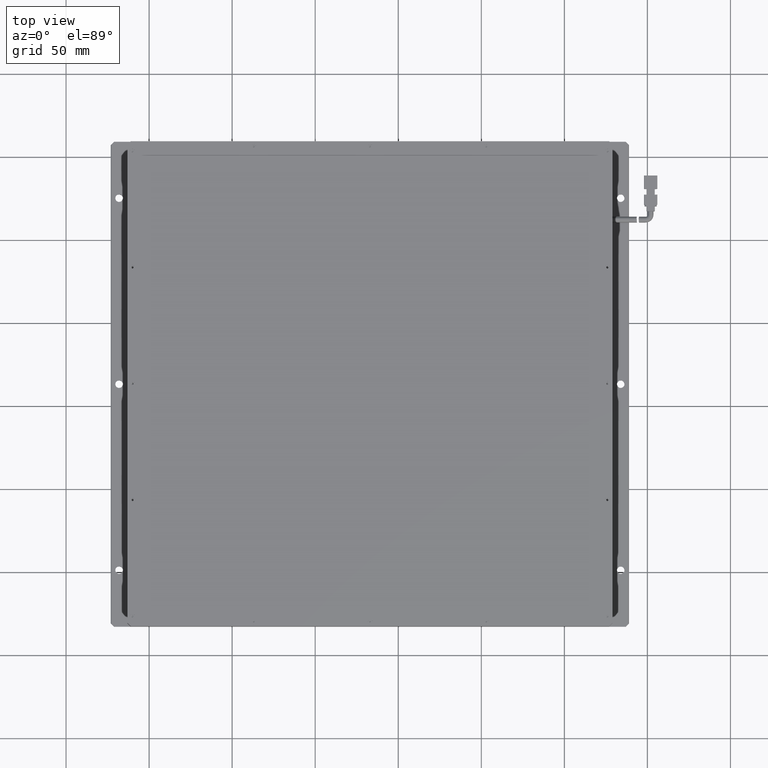
[diagram: clean part render]
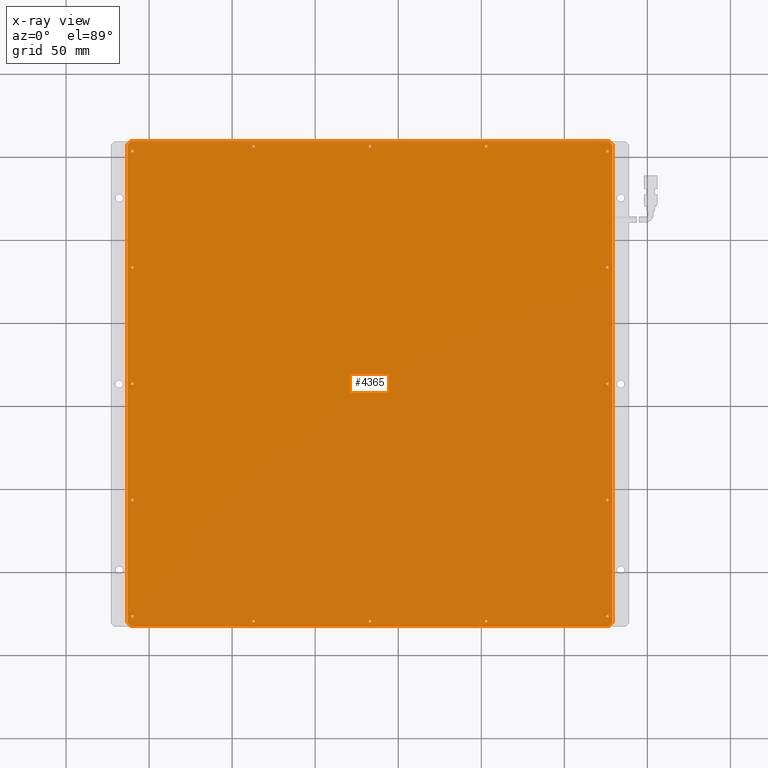
[diagram: x-ray — body ghosted, one internal face saturated and labeled with its STEP entity id]
A machine part, top view, then the same camera in x-ray: the body is ghosted and one INTERNAL B-rep face — a face not visible from any outside direction — is saturated and labeled: STEP entity #4365.
In plain terms, the highlighted planar face has unit normal (0, 0, 1).
Its self-contained STEP definition (entity closure, byte-faithful):
#224 = FACE_BOUND ( 'NONE', #3558, .T. ) ;
#230 = VERTEX_POINT ( 'NONE', #21905 ) ;
#245 = CIRCLE ( 'NONE', #17249, 0.7500000000000284200 ) ;
#292 = CARTESIAN_POINT ( 'NONE',  ( 175.9193228736581600, 153.2698045692265800, 6.999999999971803900 ) ) ;
#353 = CARTESIAN_POINT ( 'NONE',  ( 102.9193228736581500, 156.2698045692266100, 6.999999999971803900 ) ) ;
#508 = FACE_BOUND ( 'NONE', #21780, .T. ) ;
#674 = AXIS2_PLACEMENT_3D ( 'NONE', #13474, #22874, #11856 ) ;
#709 = DIRECTION ( 'NONE',  ( -0.0000000000000000000, -0.0000000000000000000, -1.000000000000000000 ) ) ;
#723 = AXIS2_PLACEMENT_3D ( 'NONE', #19654, #14280, #10681 ) ;
#740 = EDGE_CURVE ( 'NONE', #11942, #2631, #13272, .T. ) ;
#824 = ORIENTED_EDGE ( 'NONE', *, *, #11091, .F. ) ;
#941 = CARTESIAN_POINT ( 'NONE',  ( -109.3306771263418700, -126.7301954307734600, 6.999999999971803900 ) ) ;
#1099 = EDGE_CURVE ( 'NONE', #5614, #20173, #245, .T. ) ;
#1147 = CARTESIAN_POINT ( 'NONE',  ( 32.91932287365807500, -129.7301954307734500, 6.999999999971803900 ) ) ;
#1166 = EDGE_CURVE ( 'NONE', #17297, #14418, #12340, .T. ) ;
#1255 = ORIENTED_EDGE ( 'NONE', *, *, #6301, .F. ) ;
#1279 = ORIENTED_EDGE ( 'NONE', *, *, #740, .F. ) ;
#1299 = AXIS2_PLACEMENT_3D ( 'NONE', #12505, #5276, #12745 ) ;
#1537 = ORIENTED_EDGE ( 'NONE', *, *, #23696, .F. ) ;
#1555 = EDGE_CURVE ( 'NONE', #9861, #15941, #16041, .T. ) ;
#1623 = EDGE_CURVE ( 'NONE', #2631, #2321, #15743, .T. ) ;
#1715 = EDGE_CURVE ( 'NONE', #14408, #19027, #18076, .T. ) ;
#1802 = CARTESIAN_POINT ( 'NONE',  ( -110.8306771263418700, 13.26980456922655100, 6.999999999971803900 ) ) ;
#1807 = ORIENTED_EDGE ( 'NONE', *, *, #17507, .F. ) ;
#1835 = CARTESIAN_POINT ( 'NONE',  ( 175.1693228736581600, 83.26980456922656500, 6.999999999971803900 ) ) ;
#2206 = EDGE_CURVE ( 'NONE', #3853, #2930, #13133, .T. ) ;
#2234 = FACE_BOUND ( 'NONE', #3965, .T. ) ;
#2258 = EDGE_LOOP ( 'NONE', ( #20706, #9936 ) ) ;
#2321 = VERTEX_POINT ( 'NONE', #4135 ) ;
#2471 = CARTESIAN_POINT ( 'NONE',  ( -110.0806771263418700, 153.2698045692265800, 6.999999999971803900 ) ) ;
#2551 = CARTESIAN_POINT ( 'NONE',  ( -111.0806771263417500, 159.2698045692265800, 6.999999999971805700 ) ) ;
#2631 = VERTEX_POINT ( 'NONE', #18635 ) ;
#2740 = VECTOR ( 'NONE', #23077, 1000.000000000000000 ) ;
#2745 = EDGE_CURVE ( 'NONE', #14084, #7870, #22261, .T. ) ;
#2803 = CARTESIAN_POINT ( 'NONE',  ( -111.0806771263418700, 159.2698045692265500, 6.999999999971805700 ) ) ;
#2823 = AXIS2_PLACEMENT_3D ( 'NONE', #2471, #21334, #14003 ) ;
#2930 = VERTEX_POINT ( 'NONE', #14124 ) ;
#3000 = EDGE_CURVE ( 'NONE', #10575, #15597, #3764, .T. ) ;
#3016 = DIRECTION ( 'NONE',  ( -1.000000000000000000, -0.0000000000000000000, -0.0000000000000000000 ) ) ;
#3105 = CARTESIAN_POINT ( 'NONE',  ( 176.6693228736581600, 83.26980456922656500, 6.999999999971803900 ) ) ;
#3197 = AXIS2_PLACEMENT_3D ( 'NONE', #16504, #3648, #20124 ) ;
#3198 = CARTESIAN_POINT ( 'NONE',  ( 175.9193228736581600, 13.26980456922655100, 6.999999999971803900 ) ) ;
#3408 = VECTOR ( 'NONE', #8289, 1000.000000000000000 ) ;
#3558 = EDGE_LOOP ( 'NONE', ( #19241, #11783 ) ) ;
#3568 = CARTESIAN_POINT ( 'NONE',  ( 33.66932287365813200, 156.2698045692266100, 6.999999999971803900 ) ) ;
#3575 = VECTOR ( 'NONE', #16598, 1000.000000000000000 ) ;
#3594 = EDGE_CURVE ( 'NONE', #21276, #12779, #3737, .T. ) ;
#3648 = DIRECTION ( 'NONE',  ( -0.0000000000000000000, -0.0000000000000000000, -1.000000000000000000 ) ) ;
#3649 = DIRECTION ( 'NONE',  ( -0.0000000000000000000, -0.0000000000000000000, -1.000000000000000000 ) ) ;
#3672 = ORIENTED_EDGE ( 'NONE', *, *, #2745, .F. ) ;
#3734 = VERTEX_POINT ( 'NONE', #11262 ) ;
#3737 = CIRCLE ( 'NONE', #15481, 0.7500000000000006700 ) ;
#3742 = VERTEX_POINT ( 'NONE', #7888 ) ;
#3764 = CIRCLE ( 'NONE', #23156, 0.7500000000000006700 ) ;
#3809 = CARTESIAN_POINT ( 'NONE',  ( -110.0806771263418700, -126.7301954307734600, 6.999999999971803900 ) ) ;
#3853 = VERTEX_POINT ( 'NONE', #22803 ) ;
#3866 = DIRECTION ( 'NONE',  ( 1.000000000000000000, 0.0000000000000000000, 0.0000000000000000000 ) ) ;
#3901 = ORIENTED_EDGE ( 'NONE', *, *, #5340, .F. ) ;
#3965 = EDGE_LOOP ( 'NONE', ( #19865, #20856 ) ) ;
#4021 = CARTESIAN_POINT ( 'NONE',  ( -109.3306771263418700, 153.2698045692265800, 6.999999999971803900 ) ) ;
#4033 = CARTESIAN_POINT ( 'NONE',  ( 175.9193228736581300, -56.73019543077345600, 6.999999999971803900 ) ) ;
#4135 = CARTESIAN_POINT ( 'NONE',  ( -113.0806771263418700, -130.7301954307733600, 6.999999999971805700 ) ) ;
#4227 = CARTESIAN_POINT ( 'NONE',  ( 175.9193228736581300, -56.73019543077345600, 6.999999999971803900 ) ) ;
#4233 = ORIENTED_EDGE ( 'NONE', *, *, #6507, .F. ) ;
#4245 = CARTESIAN_POINT ( 'NONE',  ( 175.9193228736581600, 13.26980456922655100, 6.999999999971803900 ) ) ;
#4273 = EDGE_CURVE ( 'NONE', #6273, #15625, #20141, .T. ) ;
#4292 = DIRECTION ( 'NONE',  ( 0.0000000000000000000, 0.0000000000000000000, 1.000000000000000000 ) ) ;
#4365 = ADVANCED_FACE ( 'NONE', ( #21838, #224, #2234, #21265, #17235, #10851, #16373, #11480, #19529, #6516, #508, #23564, #17537, #22411, #19261, #14650, #14053 ), #16996, .F. ) ;
#4431 = DIRECTION ( 'NONE',  ( -0.0000000000000000000, -0.0000000000000000000, -1.000000000000000000 ) ) ;
#4522 = DIRECTION ( 'NONE',  ( 1.000000000000000000, 0.0000000000000000000, 0.0000000000000000000 ) ) ;
#4568 = CARTESIAN_POINT ( 'NONE',  ( -36.33067712634193200, -129.7301954307734500, 6.999999999971803900 ) ) ;
#4589 = CARTESIAN_POINT ( 'NONE',  ( 176.6693228736581300, -126.7301954307734600, 6.999999999971803900 ) ) ;
#4752 = DIRECTION ( 'NONE',  ( 1.000000000000000000, 0.0000000000000000000, 0.0000000000000000000 ) ) ;
#4822 = CARTESIAN_POINT ( 'NONE',  ( -113.0806771263418400, 159.2698045692266100, 6.999999999971805700 ) ) ;
#4915 = CARTESIAN_POINT ( 'NONE',  ( -113.0806771263418400, -130.7301954307733600, 6.999999999971805700 ) ) ;
#4969 = EDGE_CURVE ( 'NONE', #12515, #8054, #15699, .T. ) ;
#4984 = DIRECTION ( 'NONE',  ( 1.000000000000000000, 0.0000000000000000000, 0.0000000000000000000 ) ) ;
#5252 = DIRECTION ( 'NONE',  ( -0.0000000000000000000, -0.0000000000000000000, -1.000000000000000000 ) ) ;
#5276 = DIRECTION ( 'NONE',  ( -0.0000000000000000000, -0.0000000000000000000, -1.000000000000000000 ) ) ;
#5340 = EDGE_CURVE ( 'NONE', #23887, #11409, #15365, .T. ) ;
#5392 = ORIENTED_EDGE ( 'NONE', *, *, #10792, .F. ) ;
#5398 = DIRECTION ( 'NONE',  ( 1.000000000000000000, 0.0000000000000000000, 0.0000000000000000000 ) ) ;
#5413 = EDGE_CURVE ( 'NONE', #15597, #10575, #11913, .T. ) ;
#5486 = DIRECTION ( 'NONE',  ( 1.000000000000000000, 0.0000000000000000000, 0.0000000000000000000 ) ) ;
#5614 = VERTEX_POINT ( 'NONE', #6174 ) ;
#5693 = ORIENTED_EDGE ( 'NONE', *, *, #1099, .F. ) ;
#5708 = DIRECTION ( 'NONE',  ( -0.0000000000000000000, -0.0000000000000000000, -1.000000000000000000 ) ) ;
#5868 = DIRECTION ( 'NONE',  ( -0.0000000000000000000, -0.0000000000000000000, -1.000000000000000000 ) ) ;
#5954 = CARTESIAN_POINT ( 'NONE',  ( 178.9193228736581300, -132.7301954307733900, 6.999999999971805700 ) ) ;
#6174 = CARTESIAN_POINT ( 'NONE',  ( 175.1693228736581000, -56.73019543077345600, 6.999999999971803900 ) ) ;
#6176 = ORIENTED_EDGE ( 'NONE', *, *, #1166, .F. ) ;
#6197 = VECTOR ( 'NONE', #17519, 1000.000000000000000 ) ;
#6273 = VERTEX_POINT ( 'NONE', #14090 ) ;
#6301 = EDGE_CURVE ( 'NONE', #12779, #21276, #11772, .T. ) ;
#6447 = AXIS2_PLACEMENT_3D ( 'NONE', #14745, #3649, #5486 ) ;
#6507 = EDGE_CURVE ( 'NONE', #23596, #7347, #8242, .T. ) ;
#6516 = FACE_BOUND ( 'NONE', #19901, .T. ) ;
#6604 = AXIS2_PLACEMENT_3D ( 'NONE', #4245, #20580, #17187 ) ;
#6613 = VECTOR ( 'NONE', #21077, 1000.000000000000100 ) ;
#6679 = AXIS2_PLACEMENT_3D ( 'NONE', #21841, #21687, #10628 ) ;
#6717 = AXIS2_PLACEMENT_3D ( 'NONE', #10082, #4431, #21083 ) ;
#6723 = DIRECTION ( 'NONE',  ( 1.000000000000000000, 0.0000000000000000000, 0.0000000000000000000 ) ) ;
#6793 = CARTESIAN_POINT ( 'NONE',  ( 103.6693228736581500, 156.2698045692266100, 6.999999999971803900 ) ) ;
#6906 = ORIENTED_EDGE ( 'NONE', *, *, #20224, .F. ) ;
#6972 = AXIS2_PLACEMENT_3D ( 'NONE', #4033, #7679, #13503 ) ;
#7060 = CIRCLE ( 'NONE', #12459, 0.7500000000000006700 ) ;
#7105 = DIRECTION ( 'NONE',  ( 1.000000000000000000, 0.0000000000000000000, 0.0000000000000000000 ) ) ;
#7174 = AXIS2_PLACEMENT_3D ( 'NONE', #18205, #9127, #5398 ) ;
#7262 = EDGE_CURVE ( 'NONE', #11409, #23887, #12222, .T. ) ;
#7299 = DIRECTION ( 'NONE',  ( -0.0000000000000000000, -0.0000000000000000000, -1.000000000000000000 ) ) ;
#7347 = VERTEX_POINT ( 'NONE', #17031 ) ;
#7398 = VERTEX_POINT ( 'NONE', #4021 ) ;
#7524 = CIRCLE ( 'NONE', #6972, 0.7500000000000284200 ) ;
#7619 = ORIENTED_EDGE ( 'NONE', *, *, #2206, .F. ) ;
#7679 = DIRECTION ( 'NONE',  ( -0.0000000000000000000, -0.0000000000000000000, -1.000000000000000000 ) ) ;
#7870 = VERTEX_POINT ( 'NONE', #20792 ) ;
#7888 = CARTESIAN_POINT ( 'NONE',  ( 175.1693228736581600, 153.2698045692265800, 6.999999999971803900 ) ) ;
#7901 = CARTESIAN_POINT ( 'NONE',  ( 32.16932287365807500, -129.7301954307734500, 6.999999999971803900 ) ) ;
#8038 = ORIENTED_EDGE ( 'NONE', *, *, #15554, .F. ) ;
#8054 = VERTEX_POINT ( 'NONE', #18046 ) ;
#8074 = EDGE_LOOP ( 'NONE', ( #1255, #9473 ) ) ;
#8143 = DIRECTION ( 'NONE',  ( -0.0000000000000000000, -0.0000000000000000000, -1.000000000000000000 ) ) ;
#8186 = CIRCLE ( 'NONE', #9105, 0.7500000000000006700 ) ;
#8215 = CARTESIAN_POINT ( 'NONE',  ( 175.1693228736581600, 13.26980456922655100, 6.999999999971803900 ) ) ;
#8234 = DIRECTION ( 'NONE',  ( 1.000000000000000000, 0.0000000000000000000, 0.0000000000000000000 ) ) ;
#8242 = CIRCLE ( 'NONE', #3197, 0.7500000000000006700 ) ;
#8284 = EDGE_CURVE ( 'NONE', #7870, #21147, #10960, .T. ) ;
#8289 = DIRECTION ( 'NONE',  ( -0.7071067811865426900, -0.7071067811865524600, 0.0000000000000000000 ) ) ;
#8540 = ORIENTED_EDGE ( 'NONE', *, *, #1715, .F. ) ;
#8587 = ORIENTED_EDGE ( 'NONE', *, *, #11954, .F. ) ;
#8761 = VERTEX_POINT ( 'NONE', #16802 ) ;
#8892 = DIRECTION ( 'NONE',  ( 1.000000000000000000, 0.0000000000000000000, 0.0000000000000000000 ) ) ;
#9105 = AXIS2_PLACEMENT_3D ( 'NONE', #11775, #23258, #6723 ) ;
#9127 = DIRECTION ( 'NONE',  ( -0.0000000000000000000, -0.0000000000000000000, -1.000000000000000000 ) ) ;
#9234 = ORIENTED_EDGE ( 'NONE', *, *, #1623, .F. ) ;
#9388 = CARTESIAN_POINT ( 'NONE',  ( 102.9193228736581500, 156.2698045692266100, 6.999999999971803900 ) ) ;
#9473 = ORIENTED_EDGE ( 'NONE', *, *, #3594, .F. ) ;
#9476 = AXIS2_PLACEMENT_3D ( 'NONE', #3198, #18083, #20076 ) ;
#9529 = DIRECTION ( 'NONE',  ( 1.000000000000000000, 0.0000000000000000000, 0.0000000000000000000 ) ) ;
#9642 = VERTEX_POINT ( 'NONE', #1802 ) ;
#9667 = EDGE_CURVE ( 'NONE', #230, #9642, #11892, .T. ) ;
#9816 = CIRCLE ( 'NONE', #19059, 0.7500000000000006700 ) ;
#9845 = VECTOR ( 'NONE', #20662, 1000.000000000000000 ) ;
#9861 = VERTEX_POINT ( 'NONE', #15751 ) ;
#9936 = ORIENTED_EDGE ( 'NONE', *, *, #1555, .F. ) ;
#10022 = AXIS2_PLACEMENT_3D ( 'NONE', #21218, #8143, #17451 ) ;
#10082 = CARTESIAN_POINT ( 'NONE',  ( -37.08067712634187500, 156.2698045692266100, 6.999999999971803900 ) ) ;
#10237 = CARTESIAN_POINT ( 'NONE',  ( 102.1693228736581000, -129.7301954307734500, 6.999999999971803900 ) ) ;
#10251 = EDGE_CURVE ( 'NONE', #23499, #3742, #17003, .T. ) ;
#10506 = VECTOR ( 'NONE', #21584, 999.9999999999998900 ) ;
#10515 = EDGE_LOOP ( 'NONE', ( #15259, #21545 ) ) ;
#10563 = VECTOR ( 'NONE', #3016, 1000.000000000000000 ) ;
#10575 = VERTEX_POINT ( 'NONE', #1835 ) ;
#10628 = DIRECTION ( 'NONE',  ( 1.000000000000000000, 0.0000000000000000000, 0.0000000000000000000 ) ) ;
#10639 = DIRECTION ( 'NONE',  ( 1.000000000000000000, 0.0000000000000000000, 0.0000000000000000000 ) ) ;
#10681 = DIRECTION ( 'NONE',  ( 1.000000000000000000, 0.0000000000000000000, 0.0000000000000000000 ) ) ;
#10792 = EDGE_CURVE ( 'NONE', #17588, #7398, #17813, .T. ) ;
#10851 = FACE_BOUND ( 'NONE', #19914, .T. ) ;
#10960 = LINE ( 'NONE', #11828, #6613 ) ;
#11091 = EDGE_CURVE ( 'NONE', #2321, #3853, #16022, .T. ) ;
#11093 = DIRECTION ( 'NONE',  ( -0.0000000000000000000, -0.0000000000000000000, -1.000000000000000000 ) ) ;
#11142 = CIRCLE ( 'NONE', #20018, 0.7500000000000006700 ) ;
#11170 = LINE ( 'NONE', #4822, #10563 ) ;
#11236 = AXIS2_PLACEMENT_3D ( 'NONE', #14568, #12547, #7105 ) ;
#11240 = EDGE_CURVE ( 'NONE', #3742, #23499, #16300, .T. ) ;
#11262 = CARTESIAN_POINT ( 'NONE',  ( 33.66932287365807500, -129.7301954307734500, 6.999999999971803900 ) ) ;
#11409 = VERTEX_POINT ( 'NONE', #8215 ) ;
#11480 = FACE_BOUND ( 'NONE', #20746, .T. ) ;
#11523 = DIRECTION ( 'NONE',  ( 1.000000000000000000, 0.0000000000000000000, 0.0000000000000000000 ) ) ;
#11623 = DIRECTION ( 'NONE',  ( -0.0000000000000000000, -0.0000000000000000000, -1.000000000000000000 ) ) ;
#11693 = AXIS2_PLACEMENT_3D ( 'NONE', #22035, #18127, #8892 ) ;
#11772 = CIRCLE ( 'NONE', #17754, 0.7500000000000006700 ) ;
#11775 = CARTESIAN_POINT ( 'NONE',  ( -37.08067712634193200, -129.7301954307734500, 6.999999999971803900 ) ) ;
#11783 = ORIENTED_EDGE ( 'NONE', *, *, #11240, .F. ) ;
#11819 = CARTESIAN_POINT ( 'NONE',  ( 102.9193228736581000, -129.7301954307734500, 6.999999999971803900 ) ) ;
#11828 = CARTESIAN_POINT ( 'NONE',  ( 178.9193228736581300, 157.2698045692265500, 6.999999999971805700 ) ) ;
#11856 = DIRECTION ( 'NONE',  ( 1.000000000000000000, 0.0000000000000000000, 0.0000000000000000000 ) ) ;
#11886 = VERTEX_POINT ( 'NONE', #17566 ) ;
#11892 = CIRCLE ( 'NONE', #6447, 0.7500000000000006700 ) ;
#11913 = CIRCLE ( 'NONE', #1299, 0.7500000000000006700 ) ;
#11942 = VERTEX_POINT ( 'NONE', #2551 ) ;
#11954 = EDGE_CURVE ( 'NONE', #7398, #17588, #22125, .T. ) ;
#12025 = EDGE_CURVE ( 'NONE', #21147, #11942, #11170, .T. ) ;
#12051 = CARTESIAN_POINT ( 'NONE',  ( 176.9193228736580700, 159.2698045692266400, 6.999999999971804800 ) ) ;
#12084 = EDGE_CURVE ( 'NONE', #14418, #17297, #14366, .T. ) ;
#12219 = CIRCLE ( 'NONE', #18286, 0.7500000000000006700 ) ;
#12222 = CIRCLE ( 'NONE', #6604, 0.7500000000000006700 ) ;
#12227 = EDGE_CURVE ( 'NONE', #3734, #21616, #13740, .T. ) ;
#12258 = DIRECTION ( 'NONE',  ( 1.000000000000000000, 0.0000000000000000000, 0.0000000000000000000 ) ) ;
#12282 = EDGE_CURVE ( 'NONE', #7347, #23596, #11142, .T. ) ;
#12336 = CARTESIAN_POINT ( 'NONE',  ( 176.6693228736581600, -56.73019543077345600, 6.999999999971803900 ) ) ;
#12340 = CIRCLE ( 'NONE', #723, 0.7500000000000006700 ) ;
#12341 = CARTESIAN_POINT ( 'NONE',  ( 175.9193228736581600, 83.26980456922656500, 6.999999999971803900 ) ) ;
#12396 = ORIENTED_EDGE ( 'NONE', *, *, #16479, .F. ) ;
#12459 = AXIS2_PLACEMENT_3D ( 'NONE', #15746, #21625, #10639 ) ;
#12470 = DIRECTION ( 'NONE',  ( -0.0000000000000000000, -0.0000000000000000000, -1.000000000000000000 ) ) ;
#12505 = CARTESIAN_POINT ( 'NONE',  ( 175.9193228736581600, 83.26980456922656500, 6.999999999971803900 ) ) ;
#12515 = VERTEX_POINT ( 'NONE', #4568 ) ;
#12547 = DIRECTION ( 'NONE',  ( -0.0000000000000000000, -0.0000000000000000000, -1.000000000000000000 ) ) ;
#12568 = EDGE_CURVE ( 'NONE', #15941, #9861, #7060, .T. ) ;
#12595 = EDGE_LOOP ( 'NONE', ( #15392, #22022 ) ) ;
#12745 = DIRECTION ( 'NONE',  ( 1.000000000000000000, 0.0000000000000000000, 0.0000000000000000000 ) ) ;
#12779 = VERTEX_POINT ( 'NONE', #18258 ) ;
#12891 = DIRECTION ( 'NONE',  ( 1.000000000000000000, 0.0000000000000000000, 0.0000000000000000000 ) ) ;
#12933 = ORIENTED_EDGE ( 'NONE', *, *, #12282, .F. ) ;
#12972 = DIRECTION ( 'NONE',  ( 1.000000000000000000, 0.0000000000000000000, 0.0000000000000000000 ) ) ;
#13133 = LINE ( 'NONE', #19802, #3575 ) ;
#13198 = ORIENTED_EDGE ( 'NONE', *, *, #13435, .F. ) ;
#13272 = LINE ( 'NONE', #2803, #3408 ) ;
#13341 = EDGE_LOOP ( 'NONE', ( #17839, #13198 ) ) ;
#13435 = EDGE_CURVE ( 'NONE', #8761, #20979, #15352, .T. ) ;
#13474 = CARTESIAN_POINT ( 'NONE',  ( -110.0806771263418700, 153.2698045692265800, 6.999999999971803900 ) ) ;
#13503 = DIRECTION ( 'NONE',  ( 1.000000000000000000, 0.0000000000000000000, 0.0000000000000000000 ) ) ;
#13740 = CIRCLE ( 'NONE', #11693, 0.7500000000000006700 ) ;
#14003 = DIRECTION ( 'NONE',  ( 1.000000000000000000, 0.0000000000000000000, 0.0000000000000000000 ) ) ;
#14053 = FACE_BOUND ( 'NONE', #14908, .T. ) ;
#14084 = VERTEX_POINT ( 'NONE', #15902 ) ;
#14090 = CARTESIAN_POINT ( 'NONE',  ( 102.1693228736581300, 156.2698045692266100, 6.999999999971803900 ) ) ;
#14124 = CARTESIAN_POINT ( 'NONE',  ( 176.9193228736581600, -132.7301954307733600, 6.999999999971805700 ) ) ;
#14272 = EDGE_CURVE ( 'NONE', #20979, #8761, #19909, .T. ) ;
#14280 = DIRECTION ( 'NONE',  ( -0.0000000000000000000, -0.0000000000000000000, -1.000000000000000000 ) ) ;
#14366 = CIRCLE ( 'NONE', #7174, 0.7500000000000006700 ) ;
#14381 = AXIS2_PLACEMENT_3D ( 'NONE', #21011, #709, #15299 ) ;
#14408 = VERTEX_POINT ( 'NONE', #17633 ) ;
#14418 = VERTEX_POINT ( 'NONE', #4589 ) ;
#14423 = EDGE_LOOP ( 'NONE', ( #18186, #5693 ) ) ;
#14568 = CARTESIAN_POINT ( 'NONE',  ( -110.0806771263418700, 83.26980456922656500, 6.999999999971803900 ) ) ;
#14650 = FACE_BOUND ( 'NONE', #12595, .T. ) ;
#14678 = CARTESIAN_POINT ( 'NONE',  ( 32.91932287365813200, 156.2698045692266100, 6.999999999971803900 ) ) ;
#14745 = CARTESIAN_POINT ( 'NONE',  ( -110.0806771263418700, 13.26980456922655100, 6.999999999971803900 ) ) ;
#14908 = EDGE_LOOP ( 'NONE', ( #18734, #8038 ) ) ;
#15259 = ORIENTED_EDGE ( 'NONE', *, *, #9667, .F. ) ;
#15260 = EDGE_LOOP ( 'NONE', ( #8587, #5392 ) ) ;
#15292 = CARTESIAN_POINT ( 'NONE',  ( -36.33067712634187500, 156.2698045692266100, 6.999999999971803900 ) ) ;
#15299 = DIRECTION ( 'NONE',  ( 1.000000000000000000, 0.0000000000000000000, 0.0000000000000000000 ) ) ;
#15352 = CIRCLE ( 'NONE', #20831, 0.7500000000000006700 ) ;
#15365 = CIRCLE ( 'NONE', #9476, 0.7500000000000006700 ) ;
#15392 = ORIENTED_EDGE ( 'NONE', *, *, #12227, .F. ) ;
#15427 = CARTESIAN_POINT ( 'NONE',  ( -110.8306771263418700, -56.73019543077345600, 6.999999999971803900 ) ) ;
#15481 = AXIS2_PLACEMENT_3D ( 'NONE', #11819, #19304, #15516 ) ;
#15516 = DIRECTION ( 'NONE',  ( 1.000000000000000000, 0.0000000000000000000, 0.0000000000000000000 ) ) ;
#15554 = EDGE_CURVE ( 'NONE', #8054, #12515, #8186, .T. ) ;
#15597 = VERTEX_POINT ( 'NONE', #3105 ) ;
#15624 = DIRECTION ( 'NONE',  ( -0.0000000000000000000, -0.0000000000000000000, -1.000000000000000000 ) ) ;
#15625 = VERTEX_POINT ( 'NONE', #6793 ) ;
#15699 = CIRCLE ( 'NONE', #22131, 0.7500000000000006700 ) ;
#15713 = DIRECTION ( 'NONE',  ( 1.000000000000000000, 0.0000000000000000000, 0.0000000000000000000 ) ) ;
#15743 = LINE ( 'NONE', #17552, #2740 ) ;
#15746 = CARTESIAN_POINT ( 'NONE',  ( -37.08067712634187500, 156.2698045692266100, 6.999999999971803900 ) ) ;
#15751 = CARTESIAN_POINT ( 'NONE',  ( -37.83067712634187500, 156.2698045692266100, 6.999999999971803900 ) ) ;
#15902 = CARTESIAN_POINT ( 'NONE',  ( 178.9193228736581000, -130.7301954307733900, 6.999999999971805700 ) ) ;
#15941 = VERTEX_POINT ( 'NONE', #15292 ) ;
#15962 = AXIS2_PLACEMENT_3D ( 'NONE', #22540, #4292, #11523 ) ;
#15995 = ORIENTED_EDGE ( 'NONE', *, *, #12084, .F. ) ;
#16022 = LINE ( 'NONE', #4915, #10506 ) ;
#16041 = CIRCLE ( 'NONE', #6717, 0.7500000000000006700 ) ;
#16061 = CARTESIAN_POINT ( 'NONE',  ( -109.3306771263418700, 83.26980456922656500, 6.999999999971803900 ) ) ;
#16178 = EDGE_LOOP ( 'NONE', ( #1279, #17379, #19001, #3672, #6906, #7619, #824, #9234 ) ) ;
#16300 = CIRCLE ( 'NONE', #19074, 0.7500000000000006700 ) ;
#16346 = DIRECTION ( 'NONE',  ( 1.000000000000000000, 0.0000000000000000000, 0.0000000000000000000 ) ) ;
#16373 = FACE_BOUND ( 'NONE', #15260, .T. ) ;
#16479 = EDGE_CURVE ( 'NONE', #15625, #6273, #9816, .T. ) ;
#16504 = CARTESIAN_POINT ( 'NONE',  ( -110.0806771263418700, -126.7301954307734600, 6.999999999971803900 ) ) ;
#16598 = DIRECTION ( 'NONE',  ( 1.000000000000000000, 0.0000000000000000000, 0.0000000000000000000 ) ) ;
#16736 = DIRECTION ( 'NONE',  ( -0.0000000000000000000, -0.0000000000000000000, -1.000000000000000000 ) ) ;
#16802 = CARTESIAN_POINT ( 'NONE',  ( 32.16932287365813200, 156.2698045692266100, 6.999999999971803900 ) ) ;
#16978 = CARTESIAN_POINT ( 'NONE',  ( 176.6693228736581600, 13.26980456922655100, 6.999999999971803900 ) ) ;
#16996 = PLANE ( 'NONE',  #15962 ) ;
#17003 = CIRCLE ( 'NONE', #10022, 0.7500000000000006700 ) ;
#17031 = CARTESIAN_POINT ( 'NONE',  ( -110.8306771263418700, -126.7301954307734600, 6.999999999971803900 ) ) ;
#17035 = CARTESIAN_POINT ( 'NONE',  ( -37.08067712634193200, -129.7301954307734500, 6.999999999971803900 ) ) ;
#17087 = EDGE_CURVE ( 'NONE', #20173, #5614, #7524, .T. ) ;
#17092 = CIRCLE ( 'NONE', #21617, 0.7500000000000006700 ) ;
#17187 = DIRECTION ( 'NONE',  ( 1.000000000000000000, 0.0000000000000000000, 0.0000000000000000000 ) ) ;
#17235 = FACE_BOUND ( 'NONE', #14423, .T. ) ;
#17243 = CARTESIAN_POINT ( 'NONE',  ( 176.6693228736581600, 153.2698045692265800, 6.999999999971803900 ) ) ;
#17248 = AXIS2_PLACEMENT_3D ( 'NONE', #23664, #5252, #16346 ) ;
#17249 = AXIS2_PLACEMENT_3D ( 'NONE', #4227, #11623, #15713 ) ;
#17297 = VERTEX_POINT ( 'NONE', #19594 ) ;
#17379 = ORIENTED_EDGE ( 'NONE', *, *, #12025, .F. ) ;
#17451 = DIRECTION ( 'NONE',  ( 1.000000000000000000, 0.0000000000000000000, 0.0000000000000000000 ) ) ;
#17507 = EDGE_CURVE ( 'NONE', #11886, #18958, #19049, .T. ) ;
#17519 = DIRECTION ( 'NONE',  ( 0.7071067811865328100, 0.7071067811865622300, 0.0000000000000000000 ) ) ;
#17537 = FACE_BOUND ( 'NONE', #13341, .T. ) ;
#17552 = CARTESIAN_POINT ( 'NONE',  ( -113.0806771263418400, -132.7301954307733900, 6.999999999971805700 ) ) ;
#17566 = CARTESIAN_POINT ( 'NONE',  ( -109.3306771263418700, -56.73019543077345600, 6.999999999971803900 ) ) ;
#17588 = VERTEX_POINT ( 'NONE', #18563 ) ;
#17633 = CARTESIAN_POINT ( 'NONE',  ( -110.8306771263418700, 83.26980456922656500, 6.999999999971803900 ) ) ;
#17723 = DIRECTION ( 'NONE',  ( -0.0000000000000000000, -0.0000000000000000000, -1.000000000000000000 ) ) ;
#17754 = AXIS2_PLACEMENT_3D ( 'NONE', #21422, #15624, #4522 ) ;
#17813 = CIRCLE ( 'NONE', #674, 0.7500000000000006700 ) ;
#17839 = ORIENTED_EDGE ( 'NONE', *, *, #14272, .F. ) ;
#17973 = ORIENTED_EDGE ( 'NONE', *, *, #4273, .F. ) ;
#18046 = CARTESIAN_POINT ( 'NONE',  ( -37.83067712634193200, -129.7301954307734500, 6.999999999971803900 ) ) ;
#18059 = EDGE_CURVE ( 'NONE', #18958, #11886, #21557, .T. ) ;
#18076 = CIRCLE ( 'NONE', #11236, 0.7500000000000006700 ) ;
#18080 = AXIS2_PLACEMENT_3D ( 'NONE', #19556, #12470, #4752 ) ;
#18083 = DIRECTION ( 'NONE',  ( -0.0000000000000000000, -0.0000000000000000000, -1.000000000000000000 ) ) ;
#18127 = DIRECTION ( 'NONE',  ( -0.0000000000000000000, -0.0000000000000000000, -1.000000000000000000 ) ) ;
#18186 = ORIENTED_EDGE ( 'NONE', *, *, #17087, .F. ) ;
#18205 = CARTESIAN_POINT ( 'NONE',  ( 175.9193228736581300, -126.7301954307734600, 6.999999999971803900 ) ) ;
#18258 = CARTESIAN_POINT ( 'NONE',  ( 103.6693228736581000, -129.7301954307734500, 6.999999999971803900 ) ) ;
#18286 = AXIS2_PLACEMENT_3D ( 'NONE', #21497, #17723, #4984 ) ;
#18551 = ORIENTED_EDGE ( 'NONE', *, *, #18059, .F. ) ;
#18563 = CARTESIAN_POINT ( 'NONE',  ( -110.8306771263418700, 153.2698045692265800, 6.999999999971803900 ) ) ;
#18635 = CARTESIAN_POINT ( 'NONE',  ( -113.0806771263418100, 157.2698045692265800, 6.999999999971804800 ) ) ;
#18696 = DIRECTION ( 'NONE',  ( -0.0000000000000000000, -0.0000000000000000000, -1.000000000000000000 ) ) ;
#18734 = ORIENTED_EDGE ( 'NONE', *, *, #4969, .F. ) ;
#18958 = VERTEX_POINT ( 'NONE', #15427 ) ;
#19001 = ORIENTED_EDGE ( 'NONE', *, *, #8284, .F. ) ;
#19027 = VERTEX_POINT ( 'NONE', #16061 ) ;
#19049 = CIRCLE ( 'NONE', #6679, 0.7500000000000006700 ) ;
#19059 = AXIS2_PLACEMENT_3D ( 'NONE', #353, #5868, #20592 ) ;
#19074 = AXIS2_PLACEMENT_3D ( 'NONE', #292, #18696, #20463 ) ;
#19241 = ORIENTED_EDGE ( 'NONE', *, *, #10251, .F. ) ;
#19261 = FACE_BOUND ( 'NONE', #8074, .T. ) ;
#19304 = DIRECTION ( 'NONE',  ( -0.0000000000000000000, -0.0000000000000000000, -1.000000000000000000 ) ) ;
#19529 = FACE_BOUND ( 'NONE', #10515, .T. ) ;
#19542 = EDGE_CURVE ( 'NONE', #21616, #3734, #17092, .T. ) ;
#19556 = CARTESIAN_POINT ( 'NONE',  ( -110.0806771263418700, 83.26980456922656500, 6.999999999971803900 ) ) ;
#19594 = CARTESIAN_POINT ( 'NONE',  ( 175.1693228736581300, -126.7301954307734600, 6.999999999971803900 ) ) ;
#19654 = CARTESIAN_POINT ( 'NONE',  ( 175.9193228736581300, -126.7301954307734600, 6.999999999971803900 ) ) ;
#19773 = LINE ( 'NONE', #21284, #6197 ) ;
#19802 = CARTESIAN_POINT ( 'NONE',  ( -113.0806771263418400, -132.7301954307733900, 6.999999999971805700 ) ) ;
#19865 = ORIENTED_EDGE ( 'NONE', *, *, #5413, .F. ) ;
#19901 = EDGE_LOOP ( 'NONE', ( #1807, #18551 ) ) ;
#19909 = CIRCLE ( 'NONE', #14381, 0.7500000000000006700 ) ;
#19914 = EDGE_LOOP ( 'NONE', ( #15995, #6176 ) ) ;
#19958 = AXIS2_PLACEMENT_3D ( 'NONE', #9388, #11093, #12972 ) ;
#20018 = AXIS2_PLACEMENT_3D ( 'NONE', #3809, #16736, #9529 ) ;
#20076 = DIRECTION ( 'NONE',  ( 1.000000000000000000, 0.0000000000000000000, 0.0000000000000000000 ) ) ;
#20124 = DIRECTION ( 'NONE',  ( 1.000000000000000000, 0.0000000000000000000, 0.0000000000000000000 ) ) ;
#20141 = CIRCLE ( 'NONE', #19958, 0.7500000000000006700 ) ;
#20173 = VERTEX_POINT ( 'NONE', #12336 ) ;
#20224 = EDGE_CURVE ( 'NONE', #2930, #14084, #19773, .T. ) ;
#20463 = DIRECTION ( 'NONE',  ( 1.000000000000000000, 0.0000000000000000000, 0.0000000000000000000 ) ) ;
#20580 = DIRECTION ( 'NONE',  ( -0.0000000000000000000, -0.0000000000000000000, -1.000000000000000000 ) ) ;
#20592 = DIRECTION ( 'NONE',  ( 1.000000000000000000, 0.0000000000000000000, 0.0000000000000000000 ) ) ;
#20662 = DIRECTION ( 'NONE',  ( 0.0000000000000000000, 1.000000000000000000, 0.0000000000000000000 ) ) ;
#20706 = ORIENTED_EDGE ( 'NONE', *, *, #12568, .F. ) ;
#20728 = EDGE_LOOP ( 'NONE', ( #12396, #17973 ) ) ;
#20746 = EDGE_LOOP ( 'NONE', ( #1537, #8540 ) ) ;
#20792 = CARTESIAN_POINT ( 'NONE',  ( 178.9193228736581600, 157.2698045692265800, 6.999999999971805700 ) ) ;
#20831 = AXIS2_PLACEMENT_3D ( 'NONE', #14678, #7299, #12891 ) ;
#20855 = EDGE_CURVE ( 'NONE', #9642, #230, #12219, .T. ) ;
#20856 = ORIENTED_EDGE ( 'NONE', *, *, #3000, .F. ) ;
#20961 = EDGE_LOOP ( 'NONE', ( #3901, #21924 ) ) ;
#20979 = VERTEX_POINT ( 'NONE', #3568 ) ;
#21011 = CARTESIAN_POINT ( 'NONE',  ( 32.91932287365813200, 156.2698045692266100, 6.999999999971803900 ) ) ;
#21077 = DIRECTION ( 'NONE',  ( -0.7071067811865474600, 0.7071067811865474600, 0.0000000000000000000 ) ) ;
#21083 = DIRECTION ( 'NONE',  ( 1.000000000000000000, 0.0000000000000000000, 0.0000000000000000000 ) ) ;
#21147 = VERTEX_POINT ( 'NONE', #12051 ) ;
#21218 = CARTESIAN_POINT ( 'NONE',  ( 175.9193228736581600, 153.2698045692265800, 6.999999999971803900 ) ) ;
#21265 = FACE_BOUND ( 'NONE', #20961, .T. ) ;
#21276 = VERTEX_POINT ( 'NONE', #10237 ) ;
#21284 = CARTESIAN_POINT ( 'NONE',  ( 176.9193228736581900, -132.7301954307733900, 6.999999999971805700 ) ) ;
#21334 = DIRECTION ( 'NONE',  ( -0.0000000000000000000, -0.0000000000000000000, -1.000000000000000000 ) ) ;
#21422 = CARTESIAN_POINT ( 'NONE',  ( 102.9193228736581000, -129.7301954307734500, 6.999999999971803900 ) ) ;
#21497 = CARTESIAN_POINT ( 'NONE',  ( -110.0806771263418700, 13.26980456922655100, 6.999999999971803900 ) ) ;
#21545 = ORIENTED_EDGE ( 'NONE', *, *, #20855, .F. ) ;
#21557 = CIRCLE ( 'NONE', #17248, 0.7500000000000006700 ) ;
#21584 = DIRECTION ( 'NONE',  ( 0.7071067811865376900, -0.7071067811865574500, 0.0000000000000000000 ) ) ;
#21616 = VERTEX_POINT ( 'NONE', #7901 ) ;
#21617 = AXIS2_PLACEMENT_3D ( 'NONE', #1147, #23066, #8234 ) ;
#21625 = DIRECTION ( 'NONE',  ( -0.0000000000000000000, -0.0000000000000000000, -1.000000000000000000 ) ) ;
#21687 = DIRECTION ( 'NONE',  ( -0.0000000000000000000, -0.0000000000000000000, -1.000000000000000000 ) ) ;
#21780 = EDGE_LOOP ( 'NONE', ( #4233, #12933 ) ) ;
#21838 = FACE_OUTER_BOUND ( 'NONE', #16178, .T. ) ;
#21841 = CARTESIAN_POINT ( 'NONE',  ( -110.0806771263418700, -56.73019543077345600, 6.999999999971803900 ) ) ;
#21905 = CARTESIAN_POINT ( 'NONE',  ( -109.3306771263418700, 13.26980456922655100, 6.999999999971803900 ) ) ;
#21924 = ORIENTED_EDGE ( 'NONE', *, *, #7262, .F. ) ;
#22022 = ORIENTED_EDGE ( 'NONE', *, *, #19542, .F. ) ;
#22035 = CARTESIAN_POINT ( 'NONE',  ( 32.91932287365807500, -129.7301954307734500, 6.999999999971803900 ) ) ;
#22125 = CIRCLE ( 'NONE', #2823, 0.7500000000000006700 ) ;
#22131 = AXIS2_PLACEMENT_3D ( 'NONE', #17035, #5708, #3866 ) ;
#22261 = LINE ( 'NONE', #5954, #9845 ) ;
#22411 = FACE_BOUND ( 'NONE', #2258, .T. ) ;
#22540 = CARTESIAN_POINT ( 'NONE',  ( -113.0806771263418400, -132.7301954307733900, 6.999999999971805700 ) ) ;
#22774 = CIRCLE ( 'NONE', #18080, 0.7500000000000006700 ) ;
#22803 = CARTESIAN_POINT ( 'NONE',  ( -111.0806771263418700, -132.7301954307733900, 6.999999999971805700 ) ) ;
#22874 = DIRECTION ( 'NONE',  ( -0.0000000000000000000, -0.0000000000000000000, -1.000000000000000000 ) ) ;
#23066 = DIRECTION ( 'NONE',  ( -0.0000000000000000000, -0.0000000000000000000, -1.000000000000000000 ) ) ;
#23077 = DIRECTION ( 'NONE',  ( -0.0000000000000000000, -1.000000000000000000, -0.0000000000000000000 ) ) ;
#23156 = AXIS2_PLACEMENT_3D ( 'NONE', #12341, #23361, #12258 ) ;
#23258 = DIRECTION ( 'NONE',  ( -0.0000000000000000000, -0.0000000000000000000, -1.000000000000000000 ) ) ;
#23361 = DIRECTION ( 'NONE',  ( -0.0000000000000000000, -0.0000000000000000000, -1.000000000000000000 ) ) ;
#23499 = VERTEX_POINT ( 'NONE', #17243 ) ;
#23564 = FACE_BOUND ( 'NONE', #20728, .T. ) ;
#23596 = VERTEX_POINT ( 'NONE', #941 ) ;
#23664 = CARTESIAN_POINT ( 'NONE',  ( -110.0806771263418700, -56.73019543077345600, 6.999999999971803900 ) ) ;
#23696 = EDGE_CURVE ( 'NONE', #19027, #14408, #22774, .T. ) ;
#23887 = VERTEX_POINT ( 'NONE', #16978 ) ;